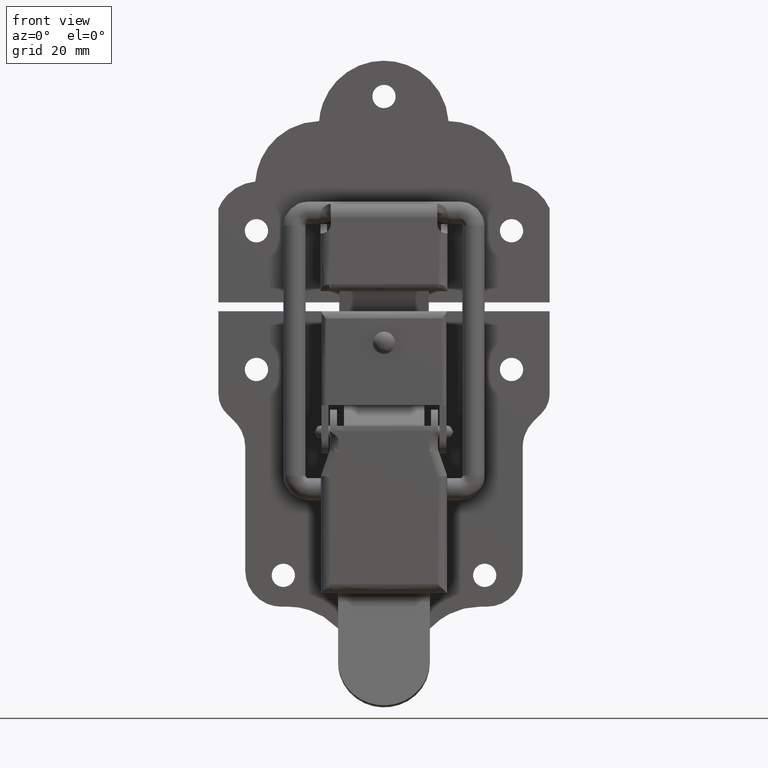
[diagram: clean part render]
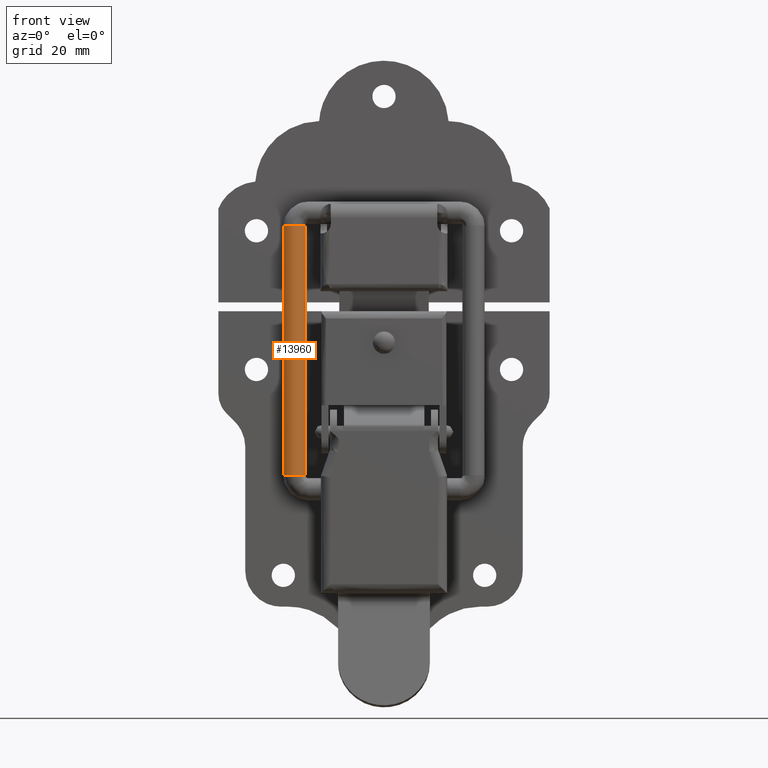
[diagram: same view with one face highlighted and labeled with its STEP entity id]
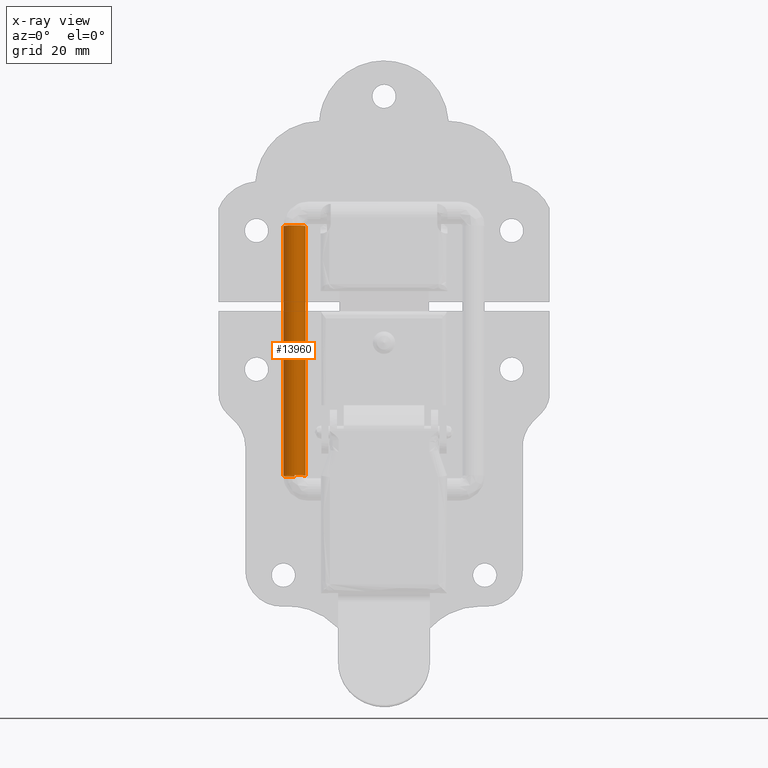
[diagram: x-ray of the same camera — body ghosted, the highlighted face saturated]
A machine part, front view. The second image highlights one B-rep face of the part: STEP entity #13960.
The next image is the same camera in x-ray: the body ghosted, the highlighted face saturated — about 0% of this face is hidden behind the body in this view.
In plain terms, the highlighted face is a freeform B-spline surface patch.
Its self-contained STEP definition (entity closure, byte-faithful):
#13787=CARTESIAN_POINT('',(-20.000122974136129,9.032756704092396,45.803977132078820));
#13788=VERTEX_POINT('',#13787);
#13789=CARTESIAN_POINT('',(-17.610379664538549,7.272869718023685,45.942396271940879));
#13790=VERTEX_POINT('',#13789);
#13806=CARTESIAN_POINT('',(-17.611545346877492,2.882996425991208,-9.866689036079118));
#13807=VERTEX_POINT('',#13806);
#13808=CARTESIAN_POINT('',(-17.611545346877492,2.882996425991208,-9.866689036079118));
#13809=CARTESIAN_POINT('',(-17.610379664538549,7.272869718023685,45.942396271940879));
#13810=QUASI_UNIFORM_CURVE('',1,(#13808,#13809),.UNSPECIFIED.,.F.,.U.);
#13811=EDGE_CURVE('',#13807,#13790,#13810,.T.);
#13813=CARTESIAN_POINT('',(-20.000123560655279,4.643120157002678,-10.005126798803230));
#13814=VERTEX_POINT('',#13813);
#13826=CARTESIAN_POINT('',(-20.000123560655279,4.643120157002678,-10.005126798803230));
#13827=CARTESIAN_POINT('',(-20.000122974136129,9.032756704092396,45.803977132078820));
#13828=QUASI_UNIFORM_CURVE('',1,(#13826,#13827),.UNSPECIFIED.,.F.,.U.);
#13829=EDGE_CURVE('',#13814,#13788,#13828,.T.);
#13834=CARTESIAN_POINT('',(-20.000122781303471,4.533535624506506,-11.400366696824660));
#13835=CARTESIAN_POINT('',(-22.500122778288429,4.533413221337055,-11.400357069535040));
#13836=CARTESIAN_POINT('',(-22.499999997098509,2.041110259714615,-11.204331733384880));
#13837=CARTESIAN_POINT('',(-22.499877215908587,-0.451192701907827,-11.008306397234712));
#13838=CARTESIAN_POINT('',(-19.999877218923640,-0.451070298738376,-11.008316024524330));
#13839=CARTESIAN_POINT('',(-17.499877221938675,-0.450947895568926,-11.008325651813955));
#13840=CARTESIAN_POINT('',(-17.500000003128601,2.041355066053515,-11.204350987964119));
#13841=CARTESIAN_POINT('',(-17.500018447454604,2.415751570500415,-11.233798130533765));
#13842=CARTESIAN_POINT('',(-17.610377962307414,2.773618026093567,-11.261945146901649));
#13843=CARTESIAN_POINT('',(-20.000122781303471,9.145269401497801,47.234083197983253));
#13844=CARTESIAN_POINT('',(-22.500122778288429,9.145146998328350,47.234092825272867));
#13845=CARTESIAN_POINT('',(-22.499999997098509,6.652844036705910,47.430118161423039));
#13846=CARTESIAN_POINT('',(-22.499877215908587,4.160541075083470,47.626143497573203));
#13847=CARTESIAN_POINT('',(-19.999877218923640,4.160663478252920,47.626133870283581));
#13848=CARTESIAN_POINT('',(-17.499877221938675,4.160785881422370,47.626124242993960));
#13849=CARTESIAN_POINT('',(-17.500000003128601,6.653088843044810,47.430098906843803));
#13850=CARTESIAN_POINT('',(-17.500018447454604,7.027485347491711,47.400651764274151));
#13851=CARTESIAN_POINT('',(-17.610377962307414,7.385351803084863,47.372504747906255));
#13859=(BOUNDED_SURFACE()B_SPLINE_SURFACE(2,1,((#13834,#13843),(#13835,#13844),(#13836,#13845),(#13837,#13846),(#13838,#13847),(#13839,#13848),(#13840,#13849),(#13841,#13850),(#13842,#13851)),.UNSPECIFIED.,.F.,.F.,.U.)B_SPLINE_SURFACE_WITH_KNOTS((3,2,2,2,3),(2,2),(0.0,4.142135623730950,8.284271247461900,12.426406871192849,13.254833995939039),(0.0,58.815531986853472),.UNSPECIFIED.)GEOMETRIC_REPRESENTATION_ITEM()RATIONAL_B_SPLINE_SURFACE(((1.0,1.0),(0.707106781186548,0.707106781186548),(1.0,1.0),(0.707106781186548,0.707106781186548),(1.0,1.0),(0.707106781186548,0.707106781186548),(1.0,1.0),(0.941421356237310,0.941421356237310),(0.906274169979695,0.906274169979695)))REPRESENTATION_ITEM('')SURFACE());
#13860=CARTESIAN_POINT('',(-17.507697035485538,6.345063317429350,46.015370373116241));
#13861=VERTEX_POINT('',#13860);
#13862=CARTESIAN_POINT('',(-17.610379664538549,7.272869718023685,45.942396271940879));
#13863=CARTESIAN_POINT('',(-17.518176334367290,6.973686718674011,45.965927700985063));
#13864=CARTESIAN_POINT('',(-17.483078814457102,6.657093111046514,45.990828514279400));
#13865=CARTESIAN_POINT('',(-17.507697035485538,6.345063317429350,46.015370373116241));
#13866=B_SPLINE_CURVE_WITH_KNOTS('',3,(#13862,#13863,#13864,#13865),.UNSPECIFIED.,.F.,.U.,(4,4),(0.940038078455786,1.0),.UNSPECIFIED.);
#13867=EDGE_CURVE('',#13790,#13861,#13866,.T.);
#13868=ORIENTED_EDGE('',*,*,#13867,.T.);
#13869=CARTESIAN_POINT('',(-18.436806157528761,4.595529584968789,46.152975208199507));
#13870=VERTEX_POINT('',#13869);
#13871=CARTESIAN_POINT('',(-17.507697035485538,6.345063317429350,46.015370373116241));
#13872=CARTESIAN_POINT('',(-17.533358681758319,6.019828537045182,46.040950833491337));
#13873=CARTESIAN_POINT('',(-17.623878377575139,5.699808242466613,46.066121162614898));
#13874=CARTESIAN_POINT('',(-17.920990159494750,5.118432135110946,46.111847725006761));
#13875=CARTESIAN_POINT('',(-18.127465344798630,4.857305069006163,46.132385966825382));
#13876=CARTESIAN_POINT('',(-18.396202180279300,4.628470594515802,46.150384322352572));
#13877=CARTESIAN_POINT('',(-18.416374909250191,4.611838913161774,46.151692442183247));
#13878=CARTESIAN_POINT('',(-18.436806157528761,4.595529584968789,46.152975208199507));
#13879=B_SPLINE_CURVE_WITH_KNOTS('',3,(#13871,#13872,#13873,#13874,#13875,#13876,#13877,#13878),.UNSPECIFIED.,.F.,.U.,(4,2,2,4),(0.0,0.062500000000000,0.125000000000000,0.129999065575555),.UNSPECIFIED.);
#13880=EDGE_CURVE('',#13861,#13870,#13879,.T.);
#13881=ORIENTED_EDGE('',*,*,#13880,.T.);
#13882=CARTESIAN_POINT('',(-22.492302964741398,6.735906939053486,45.984629627111111));
#13883=VERTEX_POINT('',#13882);
#13884=CARTESIAN_POINT('',(-18.436806157528761,4.595529584968789,46.152975208199507));
#13885=CARTESIAN_POINT('',(-18.671811076989439,4.407931498255600,46.167730227382719));
#13886=CARTESIAN_POINT('',(-18.941019069404121,4.262981942449734,46.179130841930473));
#13887=CARTESIAN_POINT('',(-19.538579365411980,4.069386298951980,46.194357582691197));
#13888=CARTESIAN_POINT('',(-19.869793926612850,4.030287651277357,46.197432780880000));
#13889=CARTESIAN_POINT('',(-20.522275594895518,4.081446817725071,46.193408995267042));
#13890=CARTESIAN_POINT('',(-20.843285978303129,4.171684502900011,46.186311594653120));
#13891=CARTESIAN_POINT('',(-21.426461100925671,4.467874874801642,46.163015543526733));
#13892=CARTESIAN_POINT('',(-21.688396385632590,4.673711023264913,46.146826059015538));
#13893=CARTESIAN_POINT('',(-22.113481836671362,5.169840301470840,46.107804354980424));
#13894=CARTESIAN_POINT('',(-22.276464750030222,5.459938225528242,46.084987488830713));
#13895=CARTESIAN_POINT('',(-22.478745122973759,6.080475224854723,46.036180832593629));
#13896=CARTESIAN_POINT('',(-22.517962993869482,6.410670145312745,46.010210245841321));
#13897=CARTESIAN_POINT('',(-22.492302964741398,6.735906939053486,45.984629627111111));
#13898=B_SPLINE_CURVE_WITH_KNOTS('',3,(#13884,#13885,#13886,#13887,#13888,#13889,#13890,#13891,#13892,#13893,#13894,#13895,#13896,#13897),.UNSPECIFIED.,.F.,.U.,(4,2,2,2,2,2,4),(0.129999065575555,0.187500000000000,0.250000000000000,0.312500000000000,0.375000000000000,0.437500000000000,0.500000000000000),.UNSPECIFIED.);
#13899=EDGE_CURVE('',#13870,#13883,#13898,.T.);
#13900=ORIENTED_EDGE('',*,*,#13899,.T.);
#13901=CARTESIAN_POINT('',(-22.492302964741398,6.735906939053486,45.984629627111111));
#13902=CARTESIAN_POINT('',(-22.466643309397689,7.061146418883082,45.959048797082183));
#13903=CARTESIAN_POINT('',(-22.376125775149831,7.381172032662294,45.933878049553833));
#13904=CARTESIAN_POINT('',(-22.079018331842420,7.962559216185648,45.888150615915038));
#13905=CARTESIAN_POINT('',(-21.872545321874700,8.223692034899482,45.867611921597089));
#13906=CARTESIAN_POINT('',(-21.374881660905150,8.647476513883516,45.834280301628681));
#13907=CARTESIAN_POINT('',(-21.083886819302659,8.809961433057685,45.821500490547329));
#13908=CARTESIAN_POINT('',(-20.523679174820352,8.991458789671368,45.807225307688682));
#13909=CARTESIAN_POINT('',(-20.261907088297828,9.032616035847688,45.803988195983813));
#13910=CARTESIAN_POINT('',(-20.000122974136129,9.032756704092396,45.803977132078820));
#13911=B_SPLINE_CURVE_WITH_KNOTS('',3,(#13901,#13902,#13903,#13904,#13905,#13906,#13907,#13908,#13909,#13910),.UNSPECIFIED.,.F.,.U.,(4,2,2,2,4),(0.500000000000000,0.562500000000000,0.625000000000000,0.687500000000000,0.737499609742744),.UNSPECIFIED.);
#13912=EDGE_CURVE('',#13883,#13788,#13911,.T.);
#13913=ORIENTED_EDGE('',*,*,#13912,.T.);
#13914=ORIENTED_EDGE('',*,*,#13829,.F.);
#13915=CARTESIAN_POINT('',(-22.492302964741778,2.346392338700180,-9.824483895608680));
#13916=VERTEX_POINT('',#13915);
#13917=CARTESIAN_POINT('',(-22.492302964741778,2.346392338700180,-9.824483895608680));
#13918=CARTESIAN_POINT('',(-22.440983714003551,2.996888566345169,-9.875646913769808));
#13919=CARTESIAN_POINT('',(-22.121377294704580,3.622326196861159,-9.924839015874042));
#13920=CARTESIAN_POINT('',(-21.175836588924120,4.427544242588467,-9.988171259392702));
#13921=CARTESIAN_POINT('',(-20.588710195724719,4.641421548992303,-10.004993199392860));
#13922=CARTESIAN_POINT('',(-20.000123560655279,4.643120157002678,-10.005126798803230));
#13923=B_SPLINE_CURVE_WITH_KNOTS('',3,(#13917,#13918,#13919,#13920,#13921,#13922),.UNSPECIFIED.,.F.,.U.,(4,2,4),(0.500000000000000,0.625000000000000,0.737494952649778),.UNSPECIFIED.);
#13924=EDGE_CURVE('',#13916,#13814,#13923,.T.);
#13925=ORIENTED_EDGE('',*,*,#13924,.F.);
#13926=CARTESIAN_POINT('',(-18.436819292472759,0.206031379852695,-9.656139604043041));
#13927=VERTEX_POINT('',#13926);
#13928=CARTESIAN_POINT('',(-18.436819292472759,0.206031379852695,-9.656139604043041));
#13929=CARTESIAN_POINT('',(-18.927490112165881,-0.184815888159935,-9.625398571241144));
#13930=CARTESIAN_POINT('',(-19.569641263488951,-0.382773958552705,-9.609828715613714));
#13931=CARTESIAN_POINT('',(-20.848508726849801,-0.282497788673048,-9.617715666041230));
#13932=CARTESIAN_POINT('',(-21.475847976158899,0.036124707252147,-9.642776055099290));
#13933=CARTESIAN_POINT('',(-22.326022367474700,1.028387607786442,-9.720819804844732));
#13934=CARTESIAN_POINT('',(-22.543622277800900,1.695917823444525,-9.773322585176700));
#13935=CARTESIAN_POINT('',(-22.492302964741778,2.346392338700180,-9.824483895608680));
#13936=B_SPLINE_CURVE_WITH_KNOTS('',3,(#13928,#13929,#13930,#13931,#13932,#13933,#13934,#13935),.UNSPECIFIED.,.F.,.U.,(4,2,2,4),(0.129999996498859,0.250000000000000,0.375000000000000,0.500000000000000),.UNSPECIFIED.);
#13937=EDGE_CURVE('',#13927,#13916,#13936,.T.);
#13938=ORIENTED_EDGE('',*,*,#13937,.F.);
#13939=CARTESIAN_POINT('',(-17.507697035485350,1.955548717085399,-9.793743149604055));
#13940=VERTEX_POINT('',#13939);
#13941=CARTESIAN_POINT('',(-17.507697035485350,1.955548717085399,-9.793743149604055));
#13942=CARTESIAN_POINT('',(-17.559016348544500,1.305074201829742,-9.742581839172079));
#13943=CARTESIAN_POINT('',(-17.878622853499149,0.679666413477440,-9.693392084222371));
#13944=CARTESIAN_POINT('',(-18.396193050325710,0.238936856914219,-9.658727695178623));
#13945=CARTESIAN_POINT('',(-18.416374667529340,0.222316688625840,-9.657420480876922));
#13946=CARTESIAN_POINT('',(-18.436819292472759,0.206031379852695,-9.656139604043041));
#13947=B_SPLINE_CURVE_WITH_KNOTS('',3,(#13941,#13942,#13943,#13944,#13945,#13946),.UNSPECIFIED.,.F.,.U.,(4,2,4),(0.0,0.125000000000000,0.129999996498859),.UNSPECIFIED.);
#13948=EDGE_CURVE('',#13940,#13927,#13947,.T.);
#13949=ORIENTED_EDGE('',*,*,#13948,.F.);
#13950=CARTESIAN_POINT('',(-17.611545346877492,2.882996425991208,-9.866689036079118));
#13951=CARTESIAN_POINT('',(-17.519561683097400,2.583792876113895,-9.843155991603718));
#13952=CARTESIAN_POINT('',(-17.482693987539079,2.267706269885743,-9.818295056078403));
#13953=CARTESIAN_POINT('',(-17.507697035485350,1.955548717085399,-9.793743149604055));
#13954=B_SPLINE_CURVE_WITH_KNOTS('',3,(#13950,#13951,#13952,#13953),.UNSPECIFIED.,.F.,.U.,(4,4),(0.940036179842988,1.0),.UNSPECIFIED.);
#13955=EDGE_CURVE('',#13807,#13940,#13954,.T.);
#13956=ORIENTED_EDGE('',*,*,#13955,.F.);
#13957=ORIENTED_EDGE('',*,*,#13811,.T.);
#13958=EDGE_LOOP('',(#13868,#13881,#13900,#13913,#13914,#13925,#13938,#13949,#13956,#13957));
#13959=FACE_OUTER_BOUND('',#13958,.T.);
#13960=ADVANCED_FACE('',(#13959),#13859,.T.);